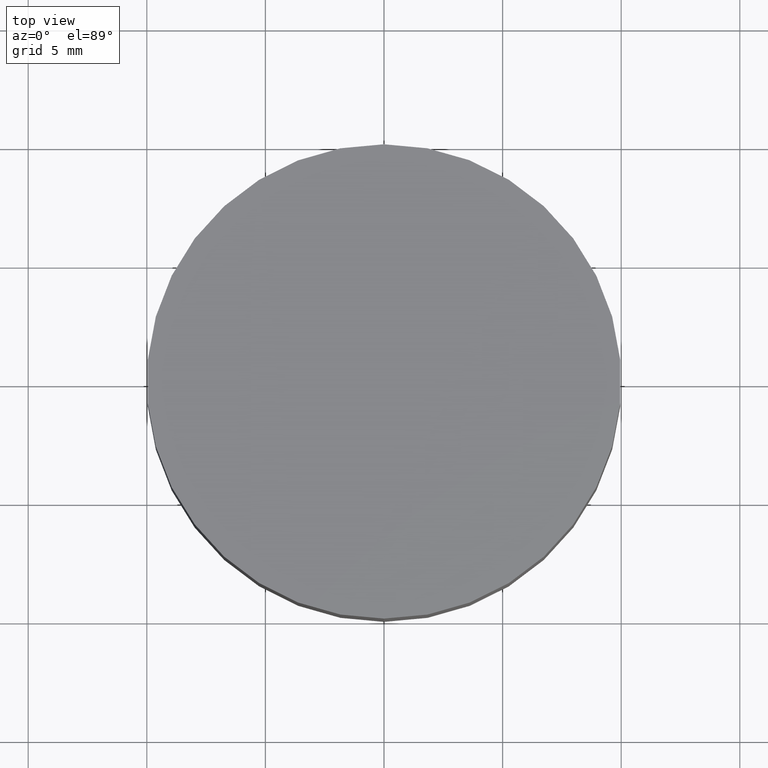
[diagram: clean part render]
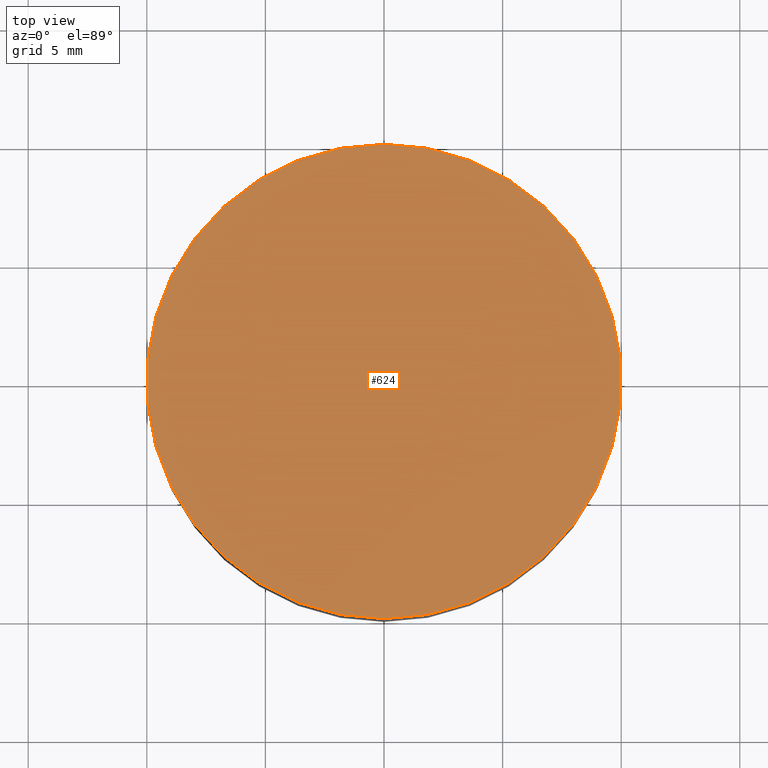
[diagram: same view with one face highlighted and labeled with its STEP entity id]
A machine part, top view. The second image highlights one B-rep face of the part: STEP entity #624.
In plain terms, the highlighted planar face has unit normal (0, 0, 1).
Its self-contained STEP definition (entity closure, byte-faithful):
#26 = VERTEX_POINT ( 'NONE', #572 ) ;
#70 = CARTESIAN_POINT ( 'NONE',  ( 0.000000000000000000, 0.000000000000000000, 12.41999999999999993 ) ) ;
#88 = CARTESIAN_POINT ( 'NONE',  ( 0.000000000000000000, 10.00000000000000000, 12.41999999999999993 ) ) ;
#95 = DIRECTION ( 'NONE',  ( 0.000000000000000000, 1.000000000000000000, 0.000000000000000000 ) ) ;
#107 = EDGE_LOOP ( 'NONE', ( #1055, #345 ) ) ;
#110 = CARTESIAN_POINT ( 'NONE',  ( 0.000000000000000000, 0.000000000000000000, 12.41999999999999993 ) ) ;
#185 = DIRECTION ( 'NONE',  ( 0.000000000000000000, 0.000000000000000000, -1.000000000000000000 ) ) ;
#250 = CIRCLE ( 'NONE', #1069, 10.00000000000000000 ) ;
#302 = AXIS2_PLACEMENT_3D ( 'NONE', #505, #789, #359 ) ;
#345 = ORIENTED_EDGE ( 'NONE', *, *, #1063, .F. ) ;
#356 = CIRCLE ( 'NONE', #443, 10.00000000000000000 ) ;
#359 = DIRECTION ( 'NONE',  ( 1.000000000000000000, 0.000000000000000000, 0.000000000000000000 ) ) ;
#405 = DIRECTION ( 'NONE',  ( 0.000000000000000000, 0.000000000000000000, -1.000000000000000000 ) ) ;
#443 = AXIS2_PLACEMENT_3D ( 'NONE', #110, #185, #95 ) ;
#449 = VERTEX_POINT ( 'NONE', #88 ) ;
#505 = CARTESIAN_POINT ( 'NONE',  ( 0.000000000000000000, 0.000000000000000000, 12.41999999999999993 ) ) ;
#572 = CARTESIAN_POINT ( 'NONE',  ( 1.224646799147353256E-15, -10.00000000000000000, 12.41999999999999993 ) ) ;
#624 = ADVANCED_FACE ( 'NONE', ( #1023 ), #689, .T. ) ;
#689 = PLANE ( 'NONE',  #302 ) ;
#747 = DIRECTION ( 'NONE',  ( 0.000000000000000000, 1.000000000000000000, 0.000000000000000000 ) ) ;
#789 = DIRECTION ( 'NONE',  ( 0.000000000000000000, 0.000000000000000000, 1.000000000000000000 ) ) ;
#854 = EDGE_CURVE ( 'NONE', #449, #26, #356, .T. ) ;
#1023 = FACE_OUTER_BOUND ( 'NONE', #107, .T. ) ;
#1055 = ORIENTED_EDGE ( 'NONE', *, *, #854, .F. ) ;
#1063 = EDGE_CURVE ( 'NONE', #26, #449, #250, .T. ) ;
#1069 = AXIS2_PLACEMENT_3D ( 'NONE', #70, #405, #747 ) ;